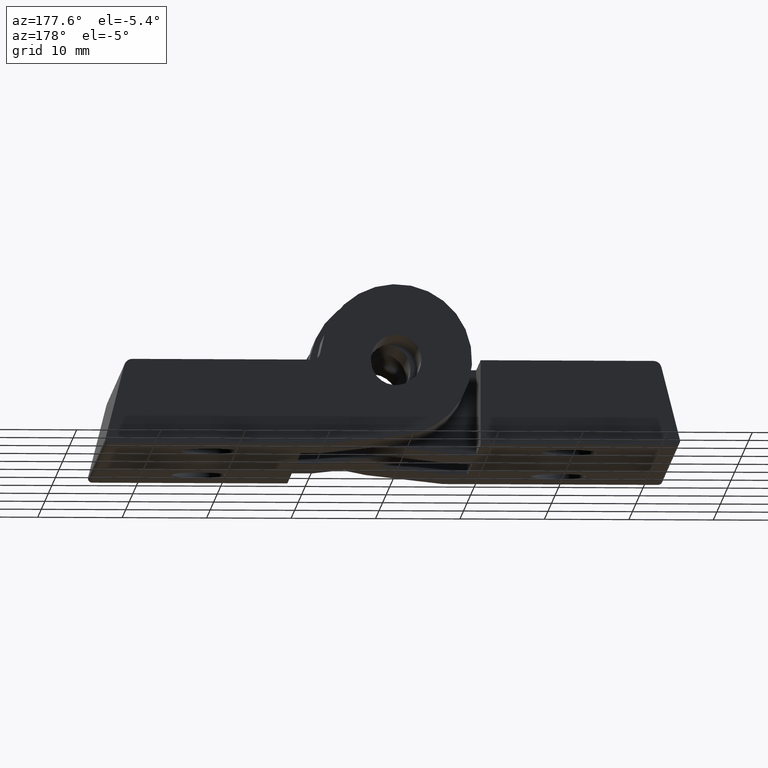
[diagram: clean part render]
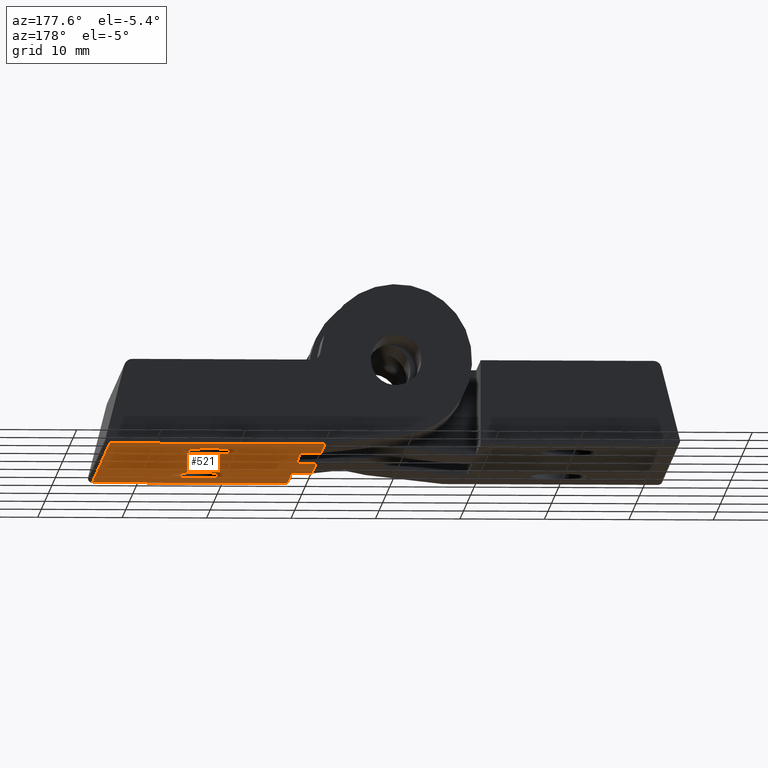
[diagram: same view with one face highlighted and labeled with its STEP entity id]
A machine part, auxiliary view. The second image highlights one B-rep face of the part: STEP entity #521.
In plain terms, the highlighted planar face has unit normal (0, 0, -1).
Its self-contained STEP definition (entity closure, byte-faithful):
#7=CARTESIAN_POINT('',(54.815773043914845,39.999994929838977,-2.449293E-015));
#8=VERTEX_POINT('',#7);
#26=CARTESIAN_POINT('',(54.815773043914845,-9.999993969961025,6.123230E-016));
#27=VERTEX_POINT('',#26);
#35=CARTESIAN_POINT('',(54.815773043914845,39.999994929838977,-2.449293E-015));
#36=DIRECTION('',(0.0,-1.0,0.0));
#37=VECTOR('',#36,49.999988899800002);
#38=LINE('',#35,#37);
#39=EDGE_CURVE('',#8,#27,#38,.T.);
#364=CARTESIAN_POINT('',(29.317091403284451,39.999994929838977,-2.449293E-015));
#365=VERTEX_POINT('',#364);
#372=CARTESIAN_POINT('',(29.317091403284451,27.999997593887201,-1.714505E-015));
#373=VERTEX_POINT('',#372);
#374=CARTESIAN_POINT('',(29.317091403284451,39.999994929838977,-2.449293E-015));
#375=DIRECTION('',(0.0,-1.0,0.0));
#376=VECTOR('',#375,11.999997335951775);
#377=LINE('',#374,#376);
#378=EDGE_CURVE('',#365,#373,#377,.T.);
#396=CARTESIAN_POINT('',(29.317091403284451,14.668011263642171,-8.981567E-016));
#397=VERTEX_POINT('',#396);
#404=CARTESIAN_POINT('',(29.317091403284451,2.668013927689948,-1.633687E-016));
#405=VERTEX_POINT('',#404);
#406=CARTESIAN_POINT('',(29.317091403284451,14.668011263642171,-8.981567E-016));
#407=DIRECTION('',(0.0,-1.0,0.0));
#408=VECTOR('',#407,11.999997335952223);
#409=LINE('',#406,#408);
#410=EDGE_CURVE('',#397,#405,#409,.T.);
#421=CARTESIAN_POINT('',(29.317091403284451,39.999994929838977,-2.449293E-015));
#422=DIRECTION('',(0.0,0.0,-1.0));
#423=DIRECTION('',(1.0,0.0,0.0));
#424=AXIS2_PLACEMENT_3D('',#421,#422,#423);
#425=PLANE('',#424);
#426=ORIENTED_EDGE('',*,*,#39,.T.);
#427=CARTESIAN_POINT('',(31.699994929270304,-9.999993969961025,6.123230E-016));
#428=VERTEX_POINT('',#427);
#429=CARTESIAN_POINT('',(31.699994929270304,-9.999993969961025,6.123230E-016));
#430=DIRECTION('',(1.0,0.0,0.0));
#431=VECTOR('',#430,23.115778114644542);
#432=LINE('',#429,#431);
#433=EDGE_CURVE('',#428,#27,#432,.T.);
#434=ORIENTED_EDGE('',*,*,#433,.F.);
#435=CARTESIAN_POINT('',(31.699994929270304,2.668013927689948,-1.633687E-016));
#436=VERTEX_POINT('',#435);
#437=CARTESIAN_POINT('',(31.699994929270304,-9.999993969961025,6.123230E-016));
#438=DIRECTION('',(0.0,1.0,0.0));
#439=VECTOR('',#438,12.668007897650973);
#440=LINE('',#437,#439);
#441=EDGE_CURVE('',#428,#436,#440,.T.);
#442=ORIENTED_EDGE('',*,*,#441,.T.);
#443=CARTESIAN_POINT('',(29.317091403284451,2.668013927689948,-1.633687E-016));
#444=DIRECTION('',(1.0,0.0,0.0));
#445=VECTOR('',#444,2.382903525985853);
#446=LINE('',#443,#445);
#447=EDGE_CURVE('',#405,#436,#446,.T.);
#448=ORIENTED_EDGE('',*,*,#447,.F.);
#449=ORIENTED_EDGE('',*,*,#410,.F.);
#450=CARTESIAN_POINT('',(31.699991119271232,14.668011263642171,-8.981567E-016));
#451=VERTEX_POINT('',#450);
#452=CARTESIAN_POINT('',(29.317091403284451,14.668011263642171,-8.981567E-016));
#453=DIRECTION('',(1.0,0.0,0.0));
#454=VECTOR('',#453,2.382899715986781);
#455=LINE('',#452,#454);
#456=EDGE_CURVE('',#397,#451,#455,.T.);
#457=ORIENTED_EDGE('',*,*,#456,.T.);
#458=CARTESIAN_POINT('',(31.699991119271232,27.999997593887201,-1.714505E-015));
#459=VERTEX_POINT('',#458);
#460=CARTESIAN_POINT('',(31.699991119271232,14.668011263642171,-8.981567E-016));
#461=DIRECTION('',(0.0,1.0,0.0));
#462=VECTOR('',#461,13.331986330245030);
#463=LINE('',#460,#462);
#464=EDGE_CURVE('',#451,#459,#463,.T.);
#465=ORIENTED_EDGE('',*,*,#464,.T.);
#466=CARTESIAN_POINT('',(29.317091403284451,27.999997593887201,-1.714505E-015));
#467=DIRECTION('',(1.0,0.0,0.0));
#468=VECTOR('',#467,2.382899715986781);
#469=LINE('',#466,#468);
#470=EDGE_CURVE('',#373,#459,#469,.T.);
#471=ORIENTED_EDGE('',*,*,#470,.F.);
#472=ORIENTED_EDGE('',*,*,#378,.F.);
#473=CARTESIAN_POINT('',(29.317091403284451,39.999994929838977,-2.449293E-015));
#474=DIRECTION('',(1.0,0.0,0.0));
#475=VECTOR('',#474,25.498681640630394);
#476=LINE('',#473,#475);
#477=EDGE_CURVE('',#365,#8,#476,.T.);
#478=ORIENTED_EDGE('',*,*,#477,.T.);
#479=EDGE_LOOP('',(#426,#434,#442,#448,#449,#457,#465,#471,#472,#478));
#480=FACE_OUTER_BOUND('',#479,.T.);
#481=CARTESIAN_POINT('',(45.849988062630018,0.000011439997252,-7.004978E-022));
#482=VERTEX_POINT('',#481);
#483=CARTESIAN_POINT('',(39.349988062630018,0.000011439997252,-7.004978E-022));
#484=VERTEX_POINT('',#483);
#485=CARTESIAN_POINT('',(42.599988062630018,0.000011439997252,-7.004978E-022));
#486=DIRECTION('',(0.0,-6.123234E-017,-1.0));
#487=DIRECTION('',(-1.0,0.0,0.0));
#488=AXIS2_PLACEMENT_3D('',#485,#486,#487);
#489=CIRCLE('',#488,3.250000000000000);
#490=EDGE_CURVE('',#482,#484,#489,.T.);
#491=ORIENTED_EDGE('',*,*,#490,.F.);
#492=CARTESIAN_POINT('',(42.599988062630018,0.000011439997252,-7.004978E-022));
#493=DIRECTION('',(0.0,-6.123234E-017,-1.0));
#494=DIRECTION('',(-1.0,0.0,0.0));
#495=AXIS2_PLACEMENT_3D('',#492,#493,#494);
#496=CIRCLE('',#495,3.250000000000000);
#497=EDGE_CURVE('',#484,#482,#496,.T.);
#498=ORIENTED_EDGE('',*,*,#497,.F.);
#499=EDGE_LOOP('',(#491,#498));
#500=FACE_BOUND('',#499,.T.);
#501=CARTESIAN_POINT('',(45.849988062630018,29.999997149879164,-1.836970E-015));
#502=VERTEX_POINT('',#501);
#503=CARTESIAN_POINT('',(39.349988062630018,29.999997149879164,-1.836970E-015));
#504=VERTEX_POINT('',#503);
#505=CARTESIAN_POINT('',(42.599988062630018,29.999997149879164,-1.836970E-015));
#506=DIRECTION('',(0.0,-6.123234E-017,-1.0));
#507=DIRECTION('',(-1.0,0.0,0.0));
#508=AXIS2_PLACEMENT_3D('',#505,#506,#507);
#509=CIRCLE('',#508,3.250000000000000);
#510=EDGE_CURVE('',#502,#504,#509,.T.);
#511=ORIENTED_EDGE('',*,*,#510,.F.);
#512=CARTESIAN_POINT('',(42.599988062630018,29.999997149879164,-1.836970E-015));
#513=DIRECTION('',(0.0,-6.123234E-017,-1.0));
#514=DIRECTION('',(-1.0,0.0,0.0));
#515=AXIS2_PLACEMENT_3D('',#512,#513,#514);
#516=CIRCLE('',#515,3.250000000000000);
#517=EDGE_CURVE('',#504,#502,#516,.T.);
#518=ORIENTED_EDGE('',*,*,#517,.F.);
#519=EDGE_LOOP('',(#511,#518));
#520=FACE_BOUND('',#519,.T.);
#521=ADVANCED_FACE('',(#480,#500,#520),#425,.T.);